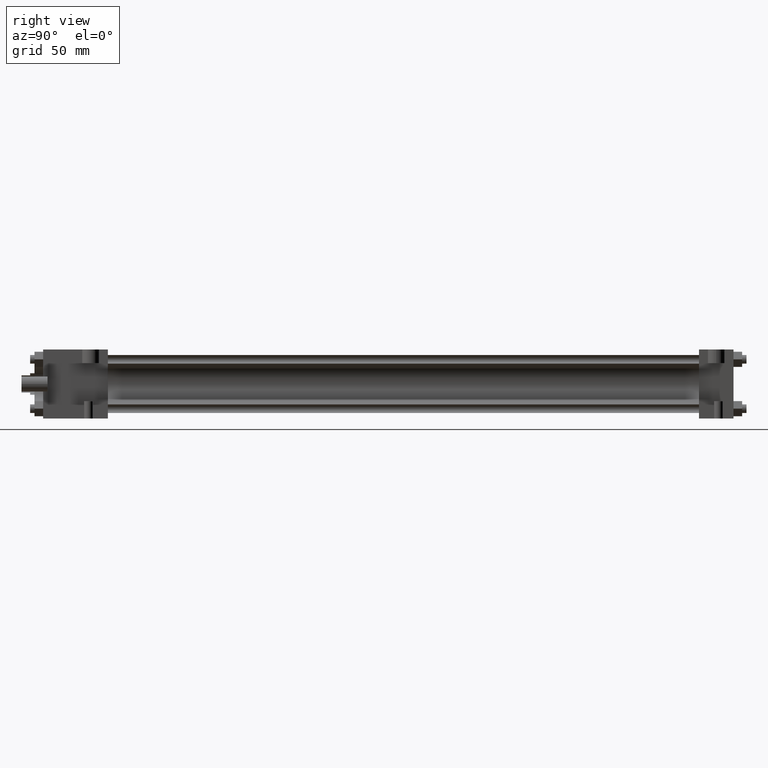
[diagram: clean part render]
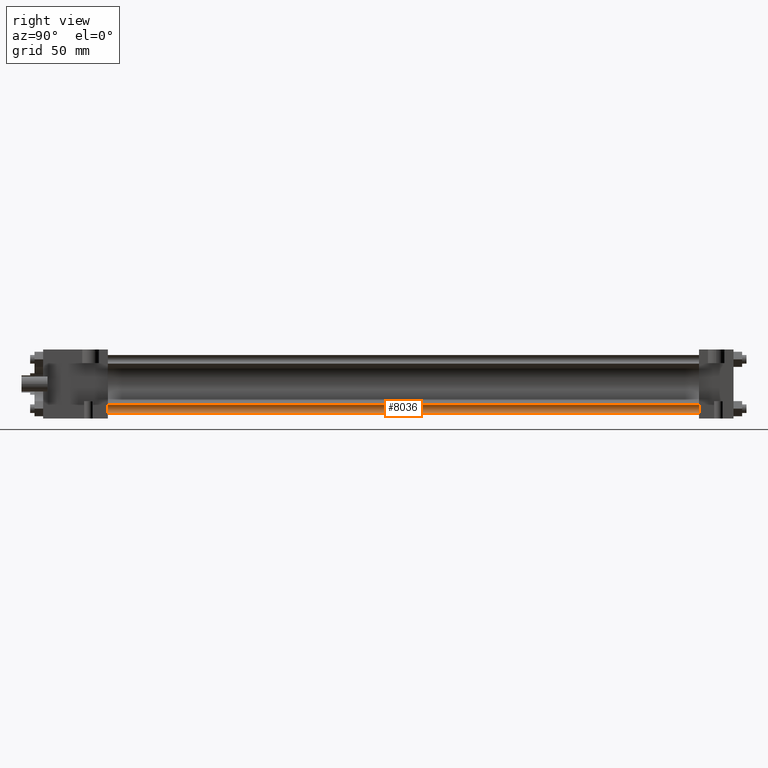
[diagram: same view with one face highlighted and labeled with its STEP entity id]
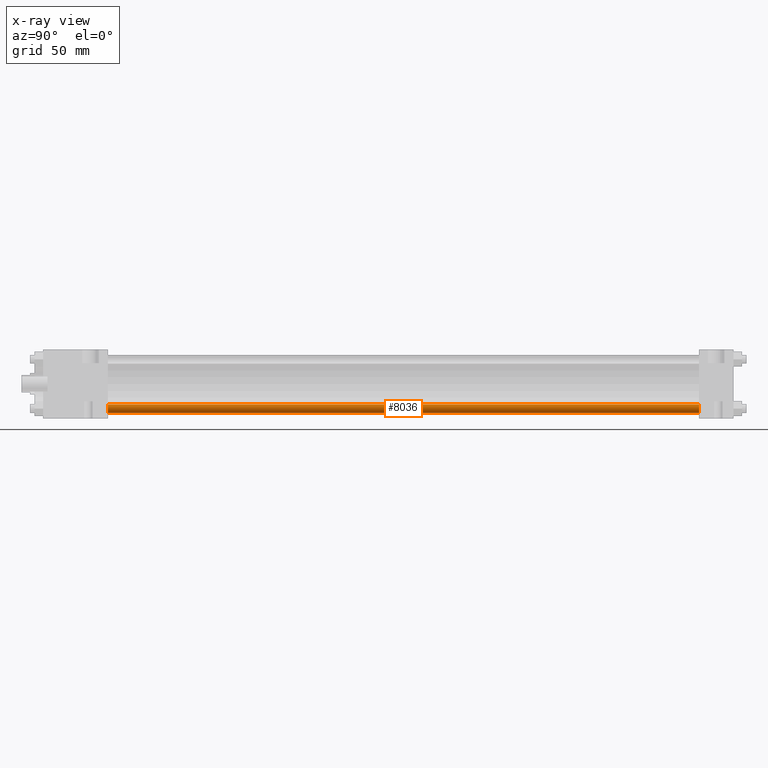
[diagram: x-ray of the same camera — body ghosted, the highlighted face saturated]
A machine part, right view. The second image highlights one B-rep face of the part: STEP entity #8036.
The next image is the same camera in x-ray: the body ghosted, the highlighted face saturated — about 0% of this face is hidden behind the body in this view.
In plain terms, the highlighted cylindrical surface (bore or boss wall) has radius 3.175 mm, axis along (0, -1, 0).
Its self-contained STEP definition (entity closure, byte-faithful):
#455=EDGE_CURVE('',#461,#461,#456,.T.);
#456=CIRCLE('',#457,3.175000000E+000);
#457=AXIS2_PLACEMENT_3D('',#458,#459,#460);
#458=CARTESIAN_POINT('',(1.816100000E+001,6.350000000E+001,-1.816100000E+001));
#459=DIRECTION('',(0.0E+000,1.0E+000,0.0E+000));
#460=DIRECTION('',(-1.0E+000,0.0E+000,0.0E+000));
#461=VERTEX_POINT('',#462);
#462=CARTESIAN_POINT('',(2.133600000E+001,6.350000000E+001,-1.816100000E+001));
#2174=FACE_OUTER_BOUND('',#2176,.T.);
#2175=FACE_BOUND('',#2177,.T.);
#2176=EDGE_LOOP('',(#2178));
#2177=EDGE_LOOP('',(#2179));
#2178=ORIENTED_EDGE('',*,*,#2228,.F.);
#2179=ORIENTED_EDGE('',*,*,#455,.T.);
#2180=CYLINDRICAL_SURFACE('',#2181,3.175000000E+000);
#2181=AXIS2_PLACEMENT_3D('',#2182,#2183,#2184);
#2182=CARTESIAN_POINT('',(1.816100000E+001,4.984750000E+002,-1.816100000E+001));
#2183=DIRECTION('',(0.0E+000,-1.0E+000,0.0E+000));
#2184=DIRECTION('',(0.0E+000,0.0E+000,-1.0E+000));
#2228=EDGE_CURVE('',#2234,#2234,#2229,.T.);
#2229=CIRCLE('',#2230,3.175000000E+000);
#2230=AXIS2_PLACEMENT_3D('',#2231,#2232,#2233);
#2231=CARTESIAN_POINT('',(1.816100000E+001,4.984750000E+002,-1.816100000E+001));
#2232=DIRECTION('',(0.0E+000,1.0E+000,0.0E+000));
#2233=DIRECTION('',(1.0E+000,0.0E+000,0.0E+000));
#2234=VERTEX_POINT('',#2235);
#2235=CARTESIAN_POINT('',(2.133600000E+001,4.984750000E+002,-1.816100000E+001));
#8036=ADVANCED_FACE('',(#2174,#2175),#2180,.T.);